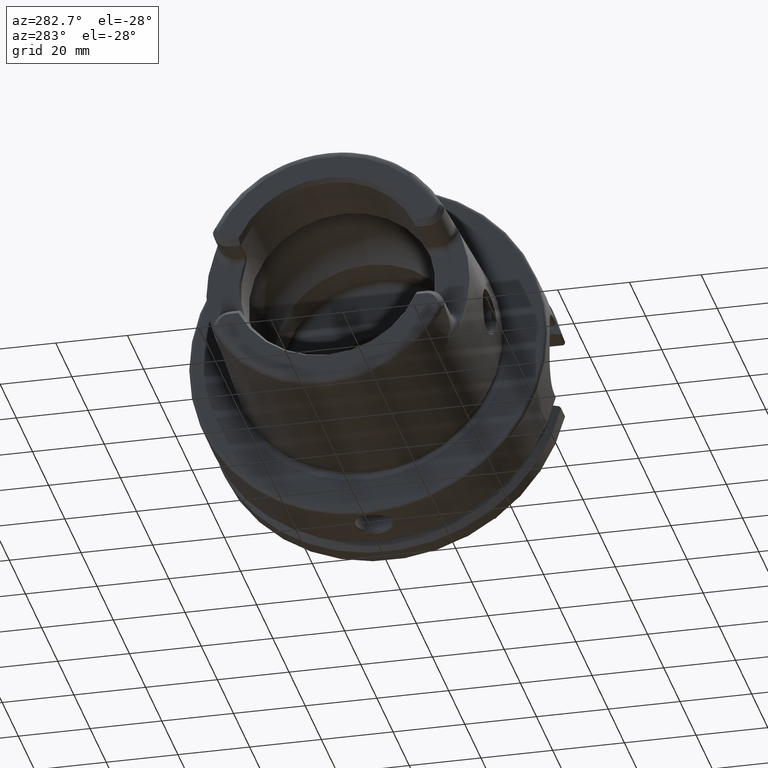
[diagram: clean part render]
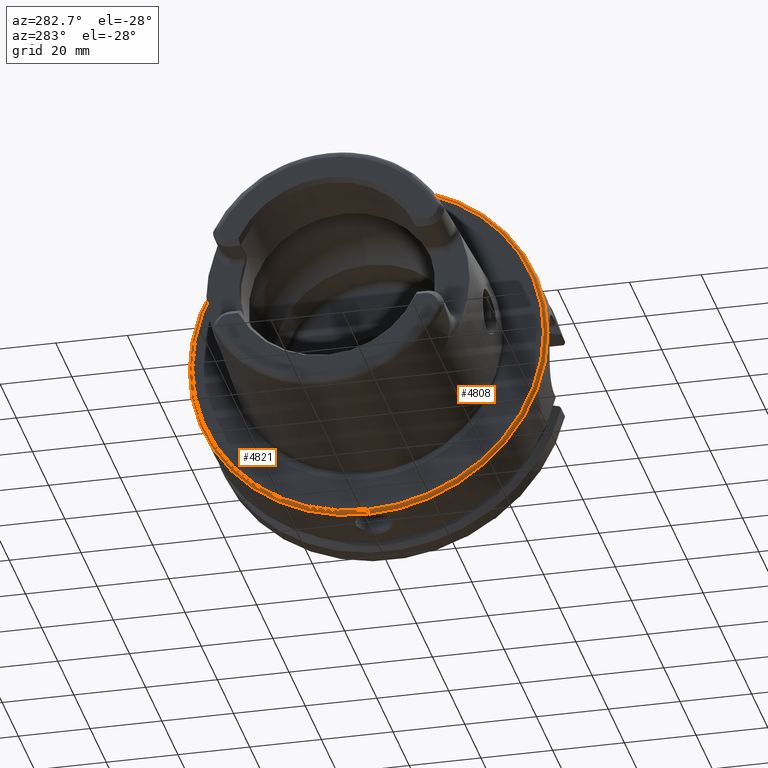
[diagram: same view with one multi-face feature highlighted, each face labeled with its STEP entity id]
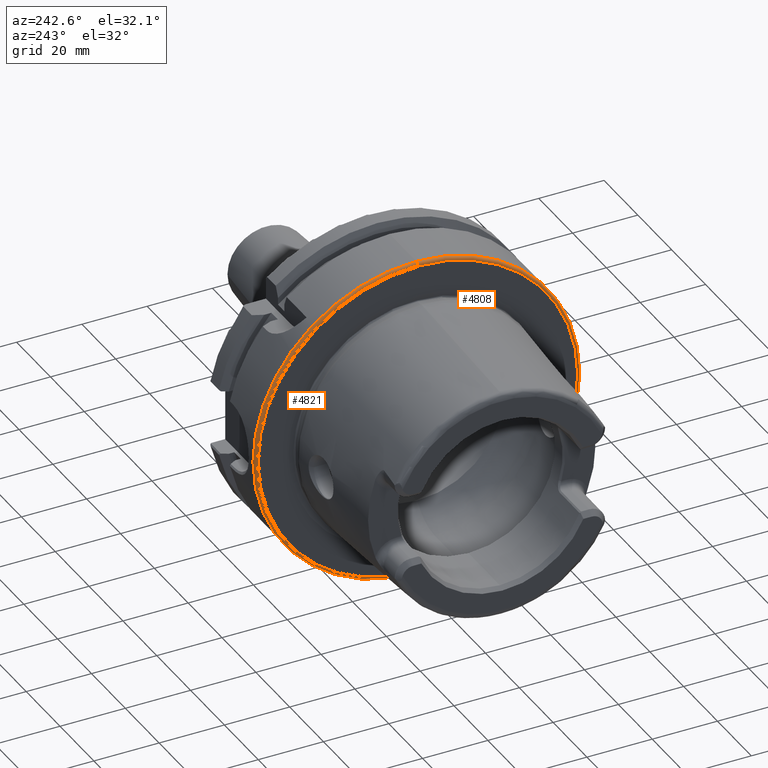
[diagram: same view with one multi-face feature highlighted, each face labeled with its STEP entity id]
A machine part, auxiliary view. The highlighted faces form ONE feature: a constant-radius fillet chain: 2 tangent blend faces with common blend radius 1 mm. The faces share edges in the B-rep.
A second angle (auxiliary view) of the same feature is appended — it is thin or edge-on in the first view.
Their STEP definitions:
[1] entity #4808 (Torus):
#1260=CARTESIAN_POINT('',(0.E0,0.E0,0.E0));
#1261=DIRECTION('',(-1.E0,0.E0,0.E0));
#1262=DIRECTION('',(0.E0,0.E0,-1.E0));
#1263=AXIS2_PLACEMENT_3D('',#1260,#1261,#1262);
#1270=CARTESIAN_POINT('',(1.E0,-1.598721155460E-14,-4.9E1));
#1271=DIRECTION('',(0.E0,-1.E0,0.E0));
#1272=DIRECTION('',(-1.E0,0.E0,0.E0));
#1273=AXIS2_PLACEMENT_3D('',#1270,#1271,#1272);
#1275=CARTESIAN_POINT('',(1.E0,-2.409183963437E-14,4.9E1));
#1276=DIRECTION('',(0.E0,1.E0,0.E0));
#1277=DIRECTION('',(-1.E0,0.E0,0.E0));
#1278=AXIS2_PLACEMENT_3D('',#1275,#1276,#1277);
#1396=CARTESIAN_POINT('',(1.E0,0.E0,0.E0));
#1397=DIRECTION('',(-1.E0,0.E0,0.E0));
#1398=DIRECTION('',(0.E0,0.E0,-1.E0));
#1399=AXIS2_PLACEMENT_3D('',#1396,#1397,#1398);
#3270=CARTESIAN_POINT('',(0.E0,0.E0,-4.9E1));
#3271=CARTESIAN_POINT('',(0.E0,-1.200153863164E-14,4.9E1));
#3272=VERTEX_POINT('',#3270);
#3273=VERTEX_POINT('',#3271);
#3274=CARTESIAN_POINT('',(1.E0,0.E0,-5.E1));
#3275=CARTESIAN_POINT('',(1.E0,-1.224646799147E-14,5.E1));
#3276=VERTEX_POINT('',#3274);
#3277=VERTEX_POINT('',#3275);
#4794=CARTESIAN_POINT('',(1.E0,0.E0,0.E0));
#4795=DIRECTION('',(1.E0,0.E0,0.E0));
#4796=DIRECTION('',(0.E0,9.795626133661E-1,-2.011394702573E-1));
#4797=AXIS2_PLACEMENT_3D('',#4794,#4795,#4796);
#4798=TOROIDAL_SURFACE('',#4797,4.9E1,1.E0);
#4799=ORIENTED_EDGE('',*,*,#4783,.T.);
#4801=ORIENTED_EDGE('',*,*,#4800,.T.);
#4803=ORIENTED_EDGE('',*,*,#4802,.F.);
#4805=ORIENTED_EDGE('',*,*,#4804,.F.);
#4806=EDGE_LOOP('',(#4799,#4801,#4803,#4805));
#4807=FACE_OUTER_BOUND('',#4806,.F.);
#4808=ADVANCED_FACE('',(#4807),#4798,.T.);
#1264=CIRCLE('',#1263,4.9E1);
#1274=CIRCLE('',#1273,1.E0);
#1279=CIRCLE('',#1278,1.E0);
#1400=CIRCLE('',#1399,5.E1);
#4783=EDGE_CURVE('',#3272,#3273,#1264,.T.);
#4800=EDGE_CURVE('',#3273,#3277,#1279,.T.);
#4802=EDGE_CURVE('',#3276,#3277,#1400,.T.);
#4804=EDGE_CURVE('',#3272,#3276,#1274,.T.);
[2] entity #4821 (Torus):
#1265=CARTESIAN_POINT('',(0.E0,0.E0,0.E0));
#1266=DIRECTION('',(-1.E0,0.E0,0.E0));
#1267=DIRECTION('',(0.E0,0.E0,1.E0));
#1268=AXIS2_PLACEMENT_3D('',#1265,#1266,#1267);
#1270=CARTESIAN_POINT('',(1.E0,-1.598721155460E-14,-4.9E1));
#1271=DIRECTION('',(0.E0,-1.E0,0.E0));
#1272=DIRECTION('',(-1.E0,0.E0,0.E0));
#1273=AXIS2_PLACEMENT_3D('',#1270,#1271,#1272);
#1275=CARTESIAN_POINT('',(1.E0,-2.409183963437E-14,4.9E1));
#1276=DIRECTION('',(0.E0,1.E0,0.E0));
#1277=DIRECTION('',(-1.E0,0.E0,0.E0));
#1278=AXIS2_PLACEMENT_3D('',#1275,#1276,#1277);
#1280=CARTESIAN_POINT('',(1.E0,0.E0,0.E0));
#1281=DIRECTION('',(-1.E0,0.E0,0.E0));
#1282=DIRECTION('',(0.E0,0.E0,1.E0));
#1283=AXIS2_PLACEMENT_3D('',#1280,#1281,#1282);
#3270=CARTESIAN_POINT('',(0.E0,0.E0,-4.9E1));
#3271=CARTESIAN_POINT('',(0.E0,-1.200153863164E-14,4.9E1));
#3272=VERTEX_POINT('',#3270);
#3273=VERTEX_POINT('',#3271);
#3274=CARTESIAN_POINT('',(1.E0,0.E0,-5.E1));
#3275=CARTESIAN_POINT('',(1.E0,-1.224646799147E-14,5.E1));
#3276=VERTEX_POINT('',#3274);
#3277=VERTEX_POINT('',#3275);
#4809=CARTESIAN_POINT('',(1.E0,0.E0,0.E0));
#4810=DIRECTION('',(1.E0,0.E0,0.E0));
#4811=DIRECTION('',(0.E0,-7.117313516455E-3,9.999746716034E-1));
#4812=AXIS2_PLACEMENT_3D('',#4809,#4810,#4811);
#4813=TOROIDAL_SURFACE('',#4812,4.9E1,1.E0);
#4814=ORIENTED_EDGE('',*,*,#4785,.T.);
#4815=ORIENTED_EDGE('',*,*,#4804,.T.);
#4817=ORIENTED_EDGE('',*,*,#4816,.F.);
#4818=ORIENTED_EDGE('',*,*,#4800,.F.);
#4819=EDGE_LOOP('',(#4814,#4815,#4817,#4818));
#4820=FACE_OUTER_BOUND('',#4819,.F.);
#4821=ADVANCED_FACE('',(#4820),#4813,.T.);
#1269=CIRCLE('',#1268,4.9E1);
#1274=CIRCLE('',#1273,1.E0);
#1279=CIRCLE('',#1278,1.E0);
#1284=CIRCLE('',#1283,5.E1);
#4785=EDGE_CURVE('',#3273,#3272,#1269,.T.);
#4800=EDGE_CURVE('',#3273,#3277,#1279,.T.);
#4804=EDGE_CURVE('',#3272,#3276,#1274,.T.);
#4816=EDGE_CURVE('',#3277,#3276,#1284,.T.);